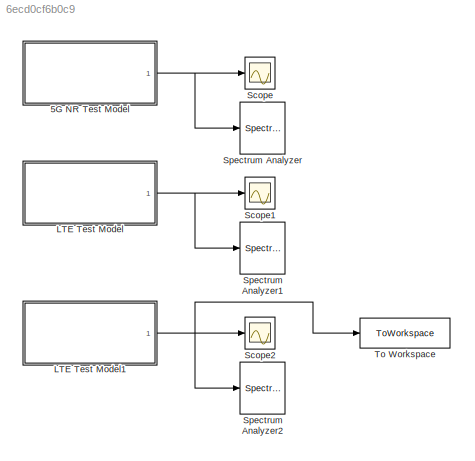
MODEL slx_6ecd0cf6b0c9
KIND model
CONFIG AbsTol = auto
CONFIG EnableMultiTasking = off
CONFIG FixedStep = auto
CONFIG MaxStep = auto
CONFIG MinStep = auto
CONFIG RelTol = 1e-3
CONFIG SampleTimeConstraint = Unconstrained
CONFIG SolverName = VariableStepAuto
CONFIG StartTime = 0.0
CONFIG StopTime = 1e-3
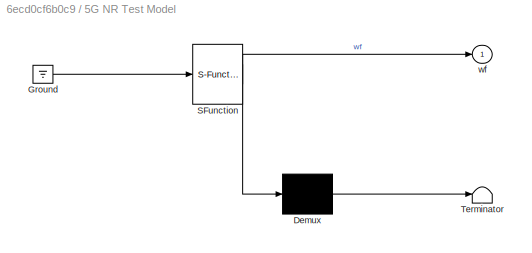
BLOCK [SubSystem] 5G NR Test Model
  ErrorFcn = Stateflow.Translate.translate
  PermitHierarchicalResolution = ExplicitOnly
  Ports = [0, 1]
  RequestExecContextInheritance = off
  SFBlockType = MATLAB Function
  SystemSampleTime = 1.3020833333333333957e-07
  Tag = BlockGeneratedWWGApp
  TreatAsAtomicUnit = on
  UserDataPersistent = on
BLOCK [Demux] 5G NR Test Model/ Demux 
  Outputs = 1
  Ports = [1, 1]
BLOCK [Ground] 5G NR Test Model/ Ground 
BLOCK [S-Function] 5G NR Test Model/ SFunction 
  EnableBusSupport = on
  FunctionName = sf_sfun
  Parameters = OutputAfterFinalValue,nsamps,waveform
  PortCounts = [1 2]
  Ports = [1, 2]
  SFcnIsStateOwnerBlock = off
  SFunctionDeploymentMode = off
  Tag = Stateflow S-Function 2
BLOCK [Terminator] 5G NR Test Model/ Terminator 
BLOCK [Outport] 5G NR Test Model/wf
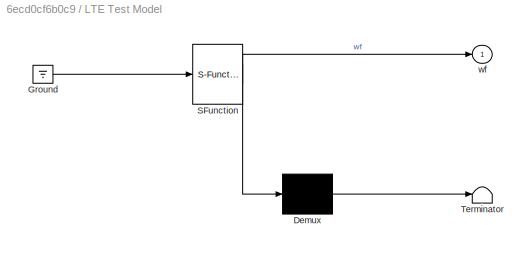
BLOCK [SubSystem] LTE Test Model
  Commented = on
  ErrorFcn = Stateflow.Translate.translate
  PermitHierarchicalResolution = ExplicitOnly
  Ports = [0, 1]
  RequestExecContextInheritance = off
  SFBlockType = MATLAB Function
  SystemSampleTime = 5.2083333333333335829e-07
  Tag = BlockGeneratedWWGApp
  TreatAsAtomicUnit = on
  UserDataPersistent = on
BLOCK [Demux] LTE Test Model/ Demux 
  Outputs = 1
  Ports = [1, 1]
BLOCK [Ground] LTE Test Model/ Ground 
BLOCK [S-Function] LTE Test Model/ SFunction 
  EnableBusSupport = on
  FunctionName = sf_sfun
  Parameters = OutputAfterFinalValue,nsamps,waveform
  PortCounts = [1 2]
  Ports = [1, 2]
  SFcnIsStateOwnerBlock = off
  SFunctionDeploymentMode = off
  Tag = Stateflow S-Function 1
BLOCK [Terminator] LTE Test Model/ Terminator 
BLOCK [Outport] LTE Test Model/wf
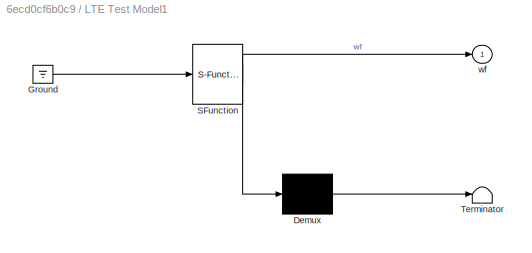
BLOCK [SubSystem] LTE Test Model1
  Commented = on
  ErrorFcn = Stateflow.Translate.translate
  PermitHierarchicalResolution = ExplicitOnly
  Ports = [0, 1]
  RequestExecContextInheritance = off
  SFBlockType = MATLAB Function
  SystemSampleTime = 5.2083333333333335829e-07
  Tag = BlockGeneratedWWGApp
  TreatAsAtomicUnit = on
  UserDataPersistent = on
BLOCK [Demux] LTE Test Model1/ Demux 
  Outputs = 1
  Ports = [1, 1]
BLOCK [Ground] LTE Test Model1/ Ground 
BLOCK [S-Function] LTE Test Model1/ SFunction 
  EnableBusSupport = on
  FunctionName = sf_sfun
  Parameters = OutputAfterFinalValue,nsamps,waveform
  PortCounts = [1 2]
  Ports = [1, 2]
  SFcnIsStateOwnerBlock = off
  SFunctionDeploymentMode = off
  Tag = Stateflow S-Function 3
BLOCK [Terminator] LTE Test Model1/ Terminator 
BLOCK [Outport] LTE Test Model1/wf
BLOCK [Scope] Scope
  Floating = off
  NumInputPorts = 1
  Ports = [1]
  ScopeSpecificationString = Simulink.scopes.TimeScopeBlockCfg('CurrentConfiguration', extmgr.ConfigurationSet(extmgr.Configuration('Core','General UI',true),extmgr.Configuration('Core','Source UI',true),extmgr.Configuration('Sources','WiredSimulink',true),extmgr.Configuration('Visuals','Time Domain',true,'SerializedDisplays',{struct('MinYLimReal','-0.03962','MaxYLimReal','0.0396','YLabelReal','','MinYLimMag','0.00000','MaxYL...<+1465ch>
BLOCK [Scope] Scope1
  Commented = on
  Floating = off
  NumInputPorts = 1
  Ports = [1]
  ScopeSpecificationString = Simulink.scopes.TimeScopeBlockCfg('CurrentConfiguration', extmgr.ConfigurationSet(extmgr.Configuration('Core','General UI',true),extmgr.Configuration('Core','Source UI',true),extmgr.Configuration('Sources','WiredSimulink',true,'DataLoggingVariableName','ScopeData1'),extmgr.Configuration('Visuals','Time Domain',true,'SerializedDisplays',{struct('MinYLimReal','-0.20084','MaxYLimReal','0.23101','YLab...<+1508ch>
BLOCK [Scope] Scope2
  Commented = on
  Floating = off
  NumInputPorts = 1
  Ports = [1]
  ScopeSpecificationString = Simulink.scopes.TimeScopeBlockCfg('CurrentConfiguration', extmgr.ConfigurationSet(extmgr.Configuration('Core','General UI',true),extmgr.Configuration('Core','Source UI',true),extmgr.Configuration('Sources','WiredSimulink',true,'DataLoggingVariableName','ScopeData2'),extmgr.Configuration('Visuals','Time Domain',true,'SerializedDisplays',{struct('MinYLimReal','-0.20084','MaxYLimReal','0.23101','YLab...<+1502ch>
BLOCK [SpectrumAnalyzer] Spectrum Analyzer
  Ports = [1]
  ScopeSpecificationString = spbscopes.SpectrumAnalyzerBlockCfg('CurrentConfiguration', extmgr.ConfigurationSet(extmgr.Configuration('Core','General UI',true),extmgr.Configuration('Core','Source UI',true),extmgr.Configuration('Sources','WiredSimulink',true),extmgr.Configuration('Visuals','Spectrum',true,'AxesProperties',struct('Color',{[0 0 0],[0 0 0]},'XColor',{[0.686274509803922 0.686274509803922 0.686274509803922],[0.68627...<+1917ch>
BLOCK [SpectrumAnalyzer] Spectrum Analyzer1
  Commented = on
  Ports = [1]
  ScopeSpecificationString = spbscopes.SpectrumAnalyzerBlockCfg('CurrentConfiguration', extmgr.ConfigurationSet(extmgr.Configuration('Core','General UI',true),extmgr.Configuration('Core','Source UI',true),extmgr.Configuration('Sources','WiredSimulink',true),extmgr.Configuration('Visuals','Spectrum',true,'AxesProperties',struct('Color',{[0 0 0],[0 0 0]},'XColor',{[0.686274509803922 0.686274509803922 0.686274509803922],[0.68627...<+1953ch>
BLOCK [SpectrumAnalyzer] Spectrum Analyzer2
  Commented = on
  Ports = [1]
  ScopeSpecificationString = spbscopes.SpectrumAnalyzerBlockCfg('CurrentConfiguration', extmgr.ConfigurationSet(extmgr.Configuration('Core','General UI',true),extmgr.Configuration('Core','Source UI',true),extmgr.Configuration('Sources','WiredSimulink',true),extmgr.Configuration('Visuals','Spectrum',true,'AxesProperties',struct('Color',{[0 0 0],[0 0 0]},'XColor',{[0.686274509803922 0.686274509803922 0.686274509803922],[0.68627...<+1953ch>
BLOCK [ToWorkspace] To Workspace
  Commented = on
  FixptAsFi = on
  MaxDataPoints = inf
  Ports = [1]
  SampleTime = -1
  Save2DSignal = 2-D array (concatenate along first dimension)
  SaveFormat = Timeseries
  VariableName = simout
NET 5G NR Test Model:1 -> Scope:1, Spectrum Analyzer:1
NET LTE Test Model1:1 -> Scope2:1, Spectrum Analyzer2:1, To Workspace:1
NET LTE Test Model:1 -> Scope1:1, Spectrum Analyzer1:1
note: NET lines group one-source signal fan-out (src -> all destinations, sorted); 1:1 wires keep LINE
CHART 5G NR Test Model states=1 transitions=1
  STATE_LABEL 'eML_blk_kernel()'
  STATE_LABEL "SCRIPT:\nfunction wf = wfGenerator(waveform, nsamps, OutputAfterFinalValue)\n\n% Create persistent variable\npersistent src;\n\n% Preallocate output\nwf = complex(zeros(nsamps,size(waveform,2)));\n\nif isempty(src)\n    % Get action when signal ends\n    if OutputAfterFinalValue\n        signalEndAction = 'Cyclic repetition';\n    else\n        signalEndAction = 'Set to zero';\n    end\n    \n    % Initialize pers...<+174ch>"  <repeated x3 — deduplicated; at blocks: 5G NR Test Model, LTE Test Model1, LTE Test Model>
CHART LTE Test Model1 states=1 transitions=1
  STATE_LABEL 'eML_blk_kernel()'
CHART LTE Test Model states=1 transitions=1
  STATE_LABEL 'eML_blk_kernel()'
CHART  states=0 transitions=0
CHART  states=0 transitions=0
CHART  states=0 transitions=0
